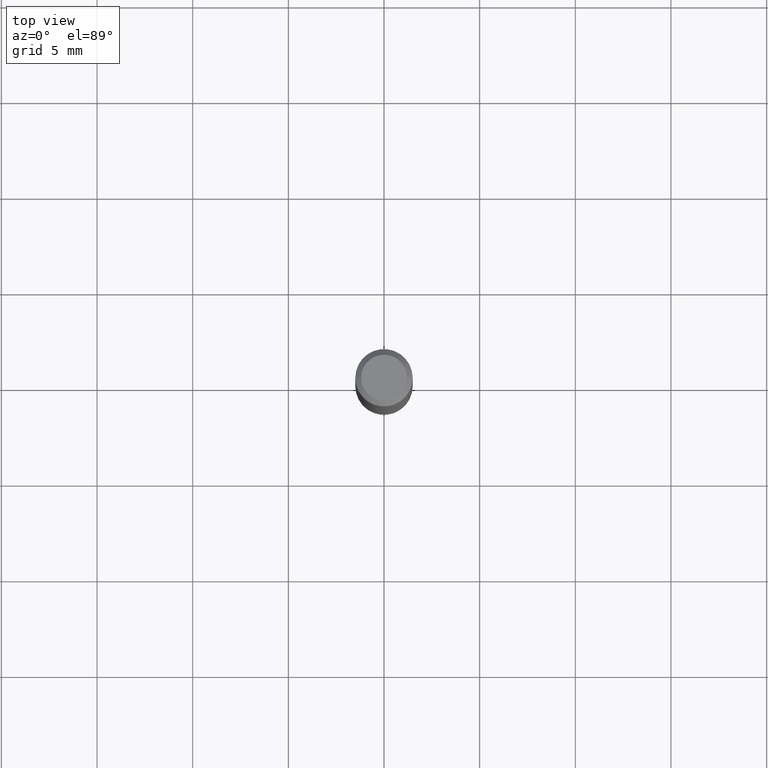
[diagram: clean part render]
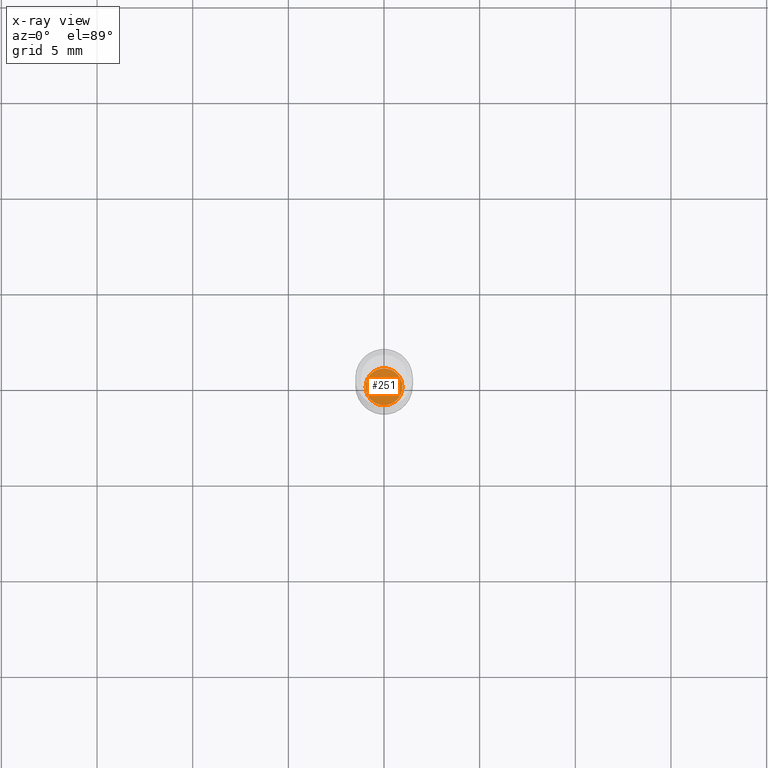
[diagram: x-ray — body ghosted, one internal face saturated and labeled with its STEP entity id]
A machine part, top view, then the same camera in x-ray: the body is ghosted and one INTERNAL B-rep face — a face not visible from any outside direction — is saturated and labeled: STEP entity #251.
In plain terms, the highlighted planar face has unit normal (-0, 0, 1).
Its self-contained STEP definition (entity closure, byte-faithful):
#22 = VERTEX_POINT ( 'NONE', #443 ) ;
#27 = EDGE_CURVE ( 'NONE', #98, #22, #44, .T. ) ;
#36 = CARTESIAN_POINT ( 'NONE',  ( -0.03789999999999999619, -3.549481401336633678E-15, -1.094500000000000028 ) ) ;
#40 = DIRECTION ( 'NONE',  ( 1.000000000000000000, -6.982962677686265922E-15, 4.876176775795935793E-29 ) ) ;
#44 = CIRCLE ( 'NONE', #224, 0.03789999999999999619 ) ;
#49 = DIRECTION ( 'NONE',  ( 1.000000000000000000, -6.982962677686265133E-15, 0.000000000000000000 ) ) ;
#61 = EDGE_LOOP ( 'NONE', ( #253, #428 ) ) ;
#98 = VERTEX_POINT ( 'NONE', #36 ) ;
#113 = CARTESIAN_POINT ( 'NONE',  ( 2.676565608369632355E-29, -3.821426325363822773E-15, -1.094500000000000028 ) ) ;
#215 = EDGE_CURVE ( 'NONE', #22, #98, #340, .T. ) ;
#224 = AXIS2_PLACEMENT_3D ( 'NONE', #113, #271, #343 ) ;
#227 = AXIS2_PLACEMENT_3D ( 'NONE', #314, #351, #49 ) ;
#251 = ADVANCED_FACE ( 'NONE', ( #353 ), #379, .F. ) ;
#253 = ORIENTED_EDGE ( 'NONE', *, *, #215, .F. ) ;
#271 = DIRECTION ( 'NONE',  ( -2.445468806185136597E-29, 3.491481338843145583E-15, 1.000000000000000000 ) ) ;
#274 = DIRECTION ( 'NONE',  ( -2.438088387897960049E-29, 3.491481338843145188E-15, 1.000000000000000000 ) ) ;
#314 = CARTESIAN_POINT ( 'NONE',  ( 2.676565608369632355E-29, -3.821426325363822773E-15, -1.094500000000000028 ) ) ;
#340 = CIRCLE ( 'NONE', #227, 0.03789999999999999619 ) ;
#343 = DIRECTION ( 'NONE',  ( 1.000000000000000000, -6.982962677686265133E-15, 0.000000000000000000 ) ) ;
#351 = DIRECTION ( 'NONE',  ( -2.445468806185136597E-29, 3.491481338843145583E-15, 1.000000000000000000 ) ) ;
#353 = FACE_OUTER_BOUND ( 'NONE', #61, .T. ) ;
#363 = AXIS2_PLACEMENT_3D ( 'NONE', #462, #274, #40 ) ;
#379 = PLANE ( 'NONE',  #363 ) ;
#428 = ORIENTED_EDGE ( 'NONE', *, *, #27, .F. ) ;
#443 = CARTESIAN_POINT ( 'NONE',  ( 0.03789999999999999619, -4.086080610848132181E-15, -1.094500000000000028 ) ) ;
#462 = CARTESIAN_POINT ( 'NONE',  ( -7.793461323483243875E-31, -7.766027419117828059E-15, -1.094500000000000028 ) ) ;